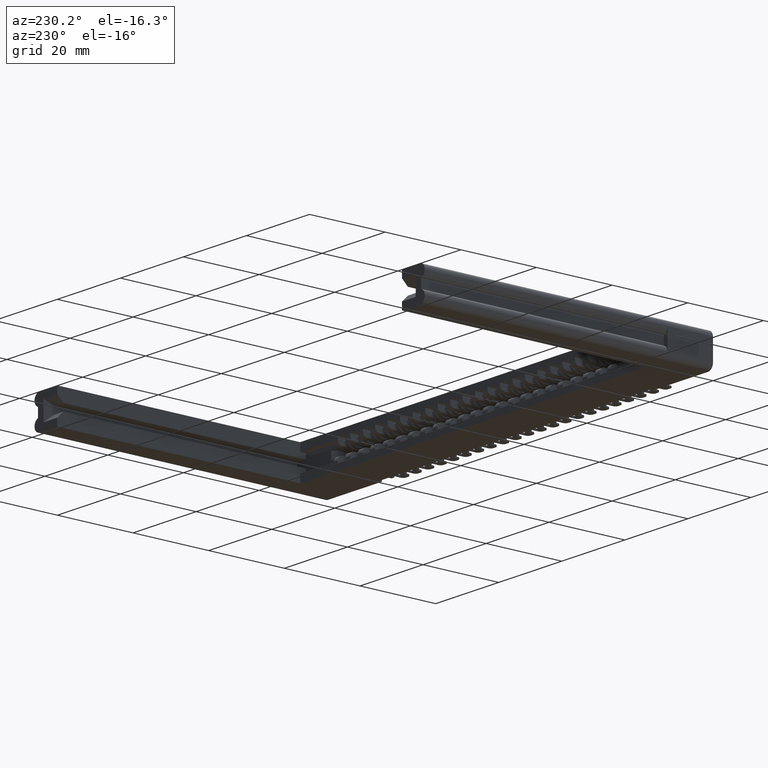
[diagram: clean part render]
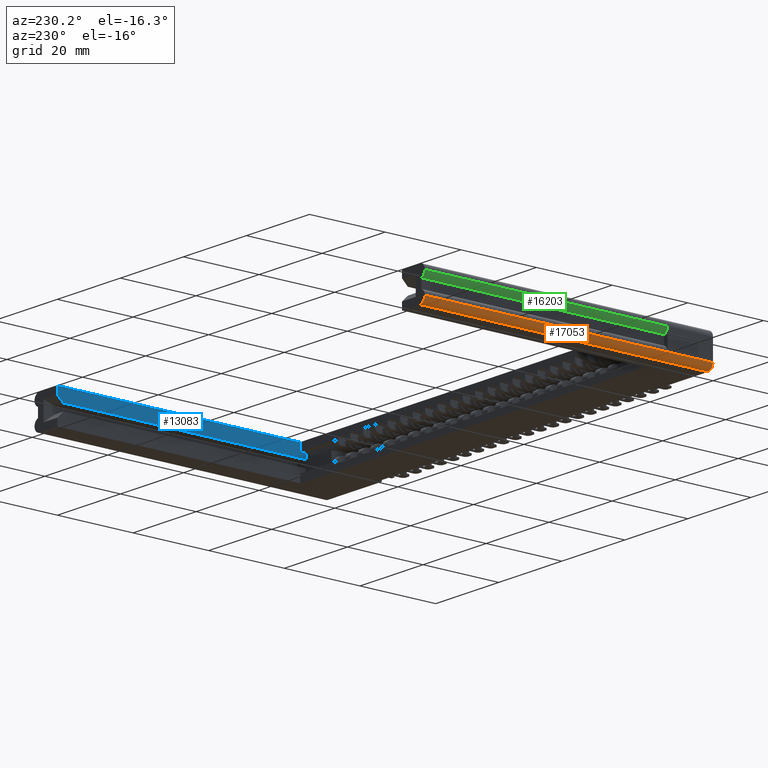
[diagram: same view with three faces highlighted in distinct colors, each labeled with its STEP entity id]
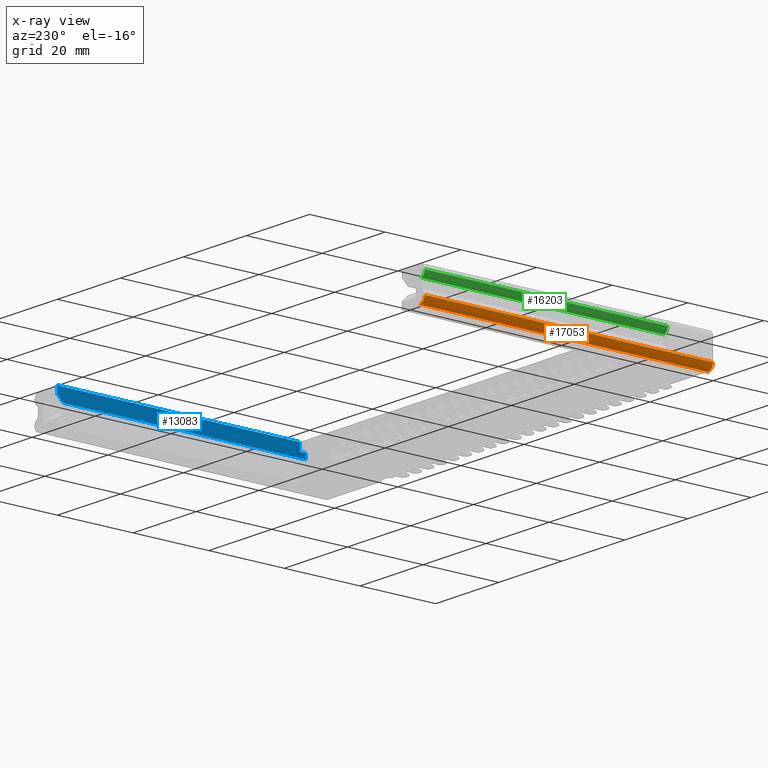
[diagram: x-ray of the same camera — body ghosted, the three highlighted faces saturated]
A machine part, auxiliary view with three faces highlighted in distinct colors.
The next image is the same camera in x-ray (body ghosted, the three faces saturated) — at least one of them is partly hidden behind the body in this view.
Their STEP definitions:

[orange] entity #17053 — the highlighted cylindrical surface (edge-blend (fillet) strip) has radius 1.6256 mm, axis along (-0, -1, 0).
#125 = AXIS2_PLACEMENT_3D ( 'NONE', #23303, #5914, #11978 ) ;
#920 = DIRECTION ( 'NONE',  ( 1.000000000000000000, 0.0000000000000000000, 0.0000000000000000000 ) ) ;
#1057 = CARTESIAN_POINT ( 'NONE',  ( 0.06400000000000000100, 0.0000000000000000000, -0.1715000000000000100 ) ) ;
#2095 = EDGE_CURVE ( 'NONE', #7168, #3990, #20445, .T. ) ;
#2506 = ORIENTED_EDGE ( 'NONE', *, *, #2095, .F. ) ;
#2663 = EDGE_CURVE ( 'NONE', #15805, #7168, #12325, .T. ) ;
#3252 = CARTESIAN_POINT ( 'NONE',  ( 0.06400000000000125000, 2.999999999999999600, -0.1715000000000000100 ) ) ;
#3639 = ORIENTED_EDGE ( 'NONE', *, *, #22808, .F. ) ;
#3990 = VERTEX_POINT ( 'NONE', #15045 ) ;
#4137 = AXIS2_PLACEMENT_3D ( 'NONE', #6334, #11895, #920 ) ;
#4629 = LINE ( 'NONE', #10525, #18580 ) ;
#4959 = EDGE_CURVE ( 'NONE', #3990, #15859, #4629, .T. ) ;
#5365 = EDGE_LOOP ( 'NONE', ( #2506, #12551, #3639, #22077 ) ) ;
#5914 = DIRECTION ( 'NONE',  ( -1.920455531574183000E-015, 1.000000000000000000, -0.0000000000000000000 ) ) ;
#6334 = CARTESIAN_POINT ( 'NONE',  ( 0.06400000000000118100, 2.999999999999999600, -0.1075000000000000100 ) ) ;
#7168 = VERTEX_POINT ( 'NONE', #3252 ) ;
#8241 = DIRECTION ( 'NONE',  ( -0.0000000000000000000, -1.000000000000000000, -0.0000000000000000000 ) ) ;
#8668 = CARTESIAN_POINT ( 'NONE',  ( 0.06400000000000000100, -2.511579562175844200E-017, -0.1715000000000000100 ) ) ;
#9952 = DIRECTION ( 'NONE',  ( -3.924343065899756400E-016, -1.000000000000000000, 0.0000000000000000000 ) ) ;
#10525 = CARTESIAN_POINT ( 'NONE',  ( 1.177302919769926800E-015, 2.999999999999999600, -0.1075000000000000100 ) ) ;
#11743 = CIRCLE ( 'NONE', #13895, 0.06400000000000000100 ) ;
#11895 = DIRECTION ( 'NONE',  ( -3.924343065899756400E-016, -1.000000000000000000, 0.0000000000000000000 ) ) ;
#11978 = DIRECTION ( 'NONE',  ( 1.000000000000000000, 0.0000000000000000000, 0.0000000000000000000 ) ) ;
#12325 = LINE ( 'NONE', #8668, #21775 ) ;
#12551 = ORIENTED_EDGE ( 'NONE', *, *, #2663, .F. ) ;
#13015 = DIRECTION ( 'NONE',  ( 3.924343065899756400E-016, 1.000000000000000000, -0.0000000000000000000 ) ) ;
#13895 = AXIS2_PLACEMENT_3D ( 'NONE', #19172, #8241, #20895 ) ;
#15045 = CARTESIAN_POINT ( 'NONE',  ( 1.177302919769926800E-015, 2.999999999999999600, -0.1075000000000000100 ) ) ;
#15805 = VERTEX_POINT ( 'NONE', #1057 ) ;
#15859 = VERTEX_POINT ( 'NONE', #17575 ) ;
#17053 = ADVANCED_FACE ( 'NONE', ( #21609 ), #21048, .T. ) ;
#17575 = CARTESIAN_POINT ( 'NONE',  ( 0.0000000000000000000, 0.0000000000000000000, -0.1075000000000000100 ) ) ;
#18580 = VECTOR ( 'NONE', #9952, 39.37007874015748100 ) ;
#19172 = CARTESIAN_POINT ( 'NONE',  ( 0.06400000000000000100, 0.0000000000000000000, -0.1075000000000000100 ) ) ;
#20445 = CIRCLE ( 'NONE', #125, 0.06400000000000000100 ) ;
#20895 = DIRECTION ( 'NONE',  ( 0.0000000000000000000, 0.0000000000000000000, 1.000000000000000000 ) ) ;
#21048 = CYLINDRICAL_SURFACE ( 'NONE', #4137, 0.06400000000000000100 ) ;
#21609 = FACE_OUTER_BOUND ( 'NONE', #5365, .T. ) ;
#21775 = VECTOR ( 'NONE', #13015, 39.37007874015748100 ) ;
#22077 = ORIENTED_EDGE ( 'NONE', *, *, #4959, .F. ) ;
#22808 = EDGE_CURVE ( 'NONE', #15859, #15805, #11743, .T. ) ;
#23303 = CARTESIAN_POINT ( 'NONE',  ( 0.06400000000000118100, 2.999999999999999600, -0.1075000000000000100 ) ) ;

[blue] entity #13083 — the highlighted planar face has unit normal (1, 0, 0).
#189 = EDGE_CURVE ( 'NONE', #18402, #20446, #4376, .T. ) ;
#375 = CARTESIAN_POINT ( 'NONE',  ( 4.590500000000000500, 0.4729999999999995900, 0.08999999999999994100 ) ) ;
#602 = CARTESIAN_POINT ( 'NONE',  ( 4.590500000000000500, 0.4109999999999994800, 0.08999999999999994100 ) ) ;
#846 = CARTESIAN_POINT ( 'NONE',  ( 4.590500000000000500, 3.000000000000000400, 0.09699999999999936500 ) ) ;
#1587 = CARTESIAN_POINT ( 'NONE',  ( 4.590500000000000500, 2.940000000000000400, 0.03699999999999999800 ) ) ;
#2443 = DIRECTION ( 'NONE',  ( 0.0000000000000000000, 0.0000000000000000000, -1.000000000000000000 ) ) ;
#3643 = PLANE ( 'NONE',  #21757 ) ;
#3796 = VECTOR ( 'NONE', #20738, 39.37007874015748100 ) ;
#4118 = VECTOR ( 'NONE', #2443, 39.37007874015748100 ) ;
#4376 = LINE ( 'NONE', #17423, #3796 ) ;
#5406 = LINE ( 'NONE', #22317, #14663 ) ;
#5492 = DIRECTION ( 'NONE',  ( 1.000000000000000000, 0.0000000000000000000, -0.0000000000000000000 ) ) ;
#5864 = EDGE_CURVE ( 'NONE', #8118, #10990, #5406, .T. ) ;
#6186 = EDGE_CURVE ( 'NONE', #7274, #22298, #12576, .T. ) ;
#6379 = ORIENTED_EDGE ( 'NONE', *, *, #189, .T. ) ;
#6707 = CARTESIAN_POINT ( 'NONE',  ( 4.590500000000000500, 3.000000000000000400, 0.1715000000000000100 ) ) ;
#6929 = CARTESIAN_POINT ( 'NONE',  ( 4.590500000000000500, 0.4109999999999994800, 0.08999999999999994100 ) ) ;
#7274 = VERTEX_POINT ( 'NONE', #375 ) ;
#7482 = VECTOR ( 'NONE', #16127, 39.37007874015748100 ) ;
#7552 = LINE ( 'NONE', #14163, #11910 ) ;
#8118 = VERTEX_POINT ( 'NONE', #6707 ) ;
#8746 = CARTESIAN_POINT ( 'NONE',  ( 4.590500000000000500, 0.4729999999999994200, 0.1715000000000000100 ) ) ;
#9543 = ORIENTED_EDGE ( 'NONE', *, *, #16498, .T. ) ;
#9623 = VERTEX_POINT ( 'NONE', #8746 ) ;
#10424 = CARTESIAN_POINT ( 'NONE',  ( 4.590500000000000500, 3.000000000000000400, 0.1715000000000000100 ) ) ;
#10685 = VECTOR ( 'NONE', #17549, 39.37007874015748100 ) ;
#10990 = VERTEX_POINT ( 'NONE', #846 ) ;
#10996 = ORIENTED_EDGE ( 'NONE', *, *, #5864, .T. ) ;
#11665 = ORIENTED_EDGE ( 'NONE', *, *, #14845, .F. ) ;
#11910 = VECTOR ( 'NONE', #17773, 39.37007874015748100 ) ;
#11916 = FACE_OUTER_BOUND ( 'NONE', #17962, .T. ) ;
#12476 = ORIENTED_EDGE ( 'NONE', *, *, #15190, .F. ) ;
#12576 = LINE ( 'NONE', #18110, #16898 ) ;
#13083 = ADVANCED_FACE ( 'NONE', ( #11916 ), #3643, .F. ) ;
#13928 = LINE ( 'NONE', #602, #4118 ) ;
#14163 = CARTESIAN_POINT ( 'NONE',  ( 4.590500000000000500, 0.4729999999999994200, 0.1715000000000000100 ) ) ;
#14663 = VECTOR ( 'NONE', #22175, 39.37007874015748100 ) ;
#14845 = EDGE_CURVE ( 'NONE', #8118, #9623, #21329, .T. ) ;
#15190 = EDGE_CURVE ( 'NONE', #22298, #20446, #13928, .T. ) ;
#15652 = LINE ( 'NONE', #19258, #10685 ) ;
#16127 = DIRECTION ( 'NONE',  ( 0.0000000000000000000, -1.000000000000000000, 0.0000000000000000000 ) ) ;
#16498 = EDGE_CURVE ( 'NONE', #10990, #18402, #15652, .T. ) ;
#16898 = VECTOR ( 'NONE', #18007, 39.37007874015748100 ) ;
#17423 = CARTESIAN_POINT ( 'NONE',  ( 4.590500000000000500, 3.000000000000000400, 0.03699999999999999800 ) ) ;
#17549 = DIRECTION ( 'NONE',  ( 0.0000000000000000000, -0.7071067811865506800, -0.7071067811865443500 ) ) ;
#17773 = DIRECTION ( 'NONE',  ( -0.0000000000000000000, -0.0000000000000000000, -1.000000000000000000 ) ) ;
#17959 = ORIENTED_EDGE ( 'NONE', *, *, #6186, .F. ) ;
#17962 = EDGE_LOOP ( 'NONE', ( #10996, #9543, #6379, #12476, #17959, #19568, #11665 ) ) ;
#18007 = DIRECTION ( 'NONE',  ( 0.0000000000000000000, -1.000000000000000000, 0.0000000000000000000 ) ) ;
#18110 = CARTESIAN_POINT ( 'NONE',  ( 4.590500000000000500, 3.000000000000000400, 0.08999999999999994100 ) ) ;
#18258 = DIRECTION ( 'NONE',  ( -0.0000000000000000000, 0.0000000000000000000, -1.000000000000000000 ) ) ;
#18402 = VERTEX_POINT ( 'NONE', #1587 ) ;
#19058 = CARTESIAN_POINT ( 'NONE',  ( 4.590500000000000500, 0.4109999999999994800, 0.03699999999999999800 ) ) ;
#19258 = CARTESIAN_POINT ( 'NONE',  ( 4.590500000000000500, 2.940000000000000400, 0.03699999999999999800 ) ) ;
#19568 = ORIENTED_EDGE ( 'NONE', *, *, #21275, .F. ) ;
#20446 = VERTEX_POINT ( 'NONE', #19058 ) ;
#20738 = DIRECTION ( 'NONE',  ( 0.0000000000000000000, -1.000000000000000000, 0.0000000000000000000 ) ) ;
#21275 = EDGE_CURVE ( 'NONE', #9623, #7274, #7552, .T. ) ;
#21329 = LINE ( 'NONE', #10424, #7482 ) ;
#21757 = AXIS2_PLACEMENT_3D ( 'NONE', #23357, #5492, #18258 ) ;
#22175 = DIRECTION ( 'NONE',  ( -0.0000000000000000000, -0.0000000000000000000, -1.000000000000000000 ) ) ;
#22298 = VERTEX_POINT ( 'NONE', #6929 ) ;
#22317 = CARTESIAN_POINT ( 'NONE',  ( 4.590500000000000500, 3.000000000000000400, 0.1715000000000000100 ) ) ;
#23357 = CARTESIAN_POINT ( 'NONE',  ( 4.590500000000000500, 3.000000000000000400, 0.1715000000000000100 ) ) ;

[green] entity #16203 — the highlighted cylindrical surface (edge-blend (fillet) strip) has radius 1.6256 mm, axis along (0, 1, 0).
#248 = DIRECTION ( 'NONE',  ( -0.0000000000000000000, 1.000000000000000000, -0.0000000000000000000 ) ) ;
#805 = VERTEX_POINT ( 'NONE', #7148 ) ;
#1821 = CARTESIAN_POINT ( 'NONE',  ( -5.405997791409373000E-018, 0.4729999999999994200, 0.1072947366142826100 ) ) ;
#2461 = ORIENTED_EDGE ( 'NONE', *, *, #11694, .F. ) ;
#3534 = DIRECTION ( 'NONE',  ( 0.0000000000000000000, -1.000000000000000000, 0.0000000000000000000 ) ) ;
#4290 = AXIS2_PLACEMENT_3D ( 'NONE', #18531, #13093, #7551 ) ;
#5276 = LINE ( 'NONE', #17250, #19208 ) ;
#5984 = VERTEX_POINT ( 'NONE', #21083 ) ;
#6062 = EDGE_LOOP ( 'NONE', ( #18304, #10870, #2461, #17723 ) ) ;
#6206 = DIRECTION ( 'NONE',  ( -3.924343065899756400E-016, -1.000000000000000000, -0.0000000000000000000 ) ) ;
#7148 = CARTESIAN_POINT ( 'NONE',  ( 0.04399999999999999700, 3.000000000000000400, 0.04650000000000000000 ) ) ;
#7551 = DIRECTION ( 'NONE',  ( 0.0000000000000000000, 0.0000000000000000000, 1.000000000000000000 ) ) ;
#9260 = LINE ( 'NONE', #18455, #18420 ) ;
#9325 = DIRECTION ( 'NONE',  ( 1.000000000000000000, 0.0000000000000000000, 8.003460918938271400E-016 ) ) ;
#9360 = DIRECTION ( 'NONE',  ( -1.920455531574183000E-015, 1.000000000000000000, -0.0000000000000000000 ) ) ;
#9407 = CARTESIAN_POINT ( 'NONE',  ( 0.06400000000000015400, 2.999999999999999600, 0.1072947366142826100 ) ) ;
#9751 = CYLINDRICAL_SURFACE ( 'NONE', #4290, 0.06400000000000001500 ) ;
#10310 = AXIS2_PLACEMENT_3D ( 'NONE', #9407, #9360, #9325 ) ;
#10870 = ORIENTED_EDGE ( 'NONE', *, *, #14095, .F. ) ;
#11071 = VERTEX_POINT ( 'NONE', #17535 ) ;
#11694 = EDGE_CURVE ( 'NONE', #805, #5984, #13787, .T. ) ;
#13093 = DIRECTION ( 'NONE',  ( 0.0000000000000000000, 1.000000000000000000, 0.0000000000000000000 ) ) ;
#13725 = EDGE_CURVE ( 'NONE', #15022, #11071, #21658, .T. ) ;
#13787 = CIRCLE ( 'NONE', #10310, 0.06400000000000000100 ) ;
#13908 = EDGE_CURVE ( 'NONE', #11071, #805, #9260, .T. ) ;
#14095 = EDGE_CURVE ( 'NONE', #5984, #15022, #5276, .T. ) ;
#14593 = CARTESIAN_POINT ( 'NONE',  ( 0.06400000000000015400, 0.4729999999999994200, 0.1072947366142826100 ) ) ;
#15022 = VERTEX_POINT ( 'NONE', #1821 ) ;
#15066 = AXIS2_PLACEMENT_3D ( 'NONE', #14593, #3534, #16412 ) ;
#16203 = ADVANCED_FACE ( 'NONE', ( #19414 ), #9751, .T. ) ;
#16412 = DIRECTION ( 'NONE',  ( 0.0000000000000000000, 0.0000000000000000000, -1.000000000000000000 ) ) ;
#17250 = CARTESIAN_POINT ( 'NONE',  ( 1.177302919769926800E-015, 2.999999999999999600, 0.1072947366142826100 ) ) ;
#17535 = CARTESIAN_POINT ( 'NONE',  ( 0.04399999999999999700, 0.4729999999999994200, 0.04650000000000000000 ) ) ;
#17723 = ORIENTED_EDGE ( 'NONE', *, *, #13908, .F. ) ;
#18304 = ORIENTED_EDGE ( 'NONE', *, *, #13725, .F. ) ;
#18420 = VECTOR ( 'NONE', #248, 39.37007874015748100 ) ;
#18455 = CARTESIAN_POINT ( 'NONE',  ( 0.04399999999999999700, 0.3701165708192027900, 0.04650000000000000000 ) ) ;
#18531 = CARTESIAN_POINT ( 'NONE',  ( 0.06400000000000015400, 0.3701165708192027900, 0.1072947366142826100 ) ) ;
#19208 = VECTOR ( 'NONE', #6206, 39.37007874015748100 ) ;
#19414 = FACE_OUTER_BOUND ( 'NONE', #6062, .T. ) ;
#21083 = CARTESIAN_POINT ( 'NONE',  ( 1.177302919769926800E-015, 2.999999999999999600, 0.1072947366142826100 ) ) ;
#21658 = CIRCLE ( 'NONE', #15066, 0.06400000000000000100 ) ;